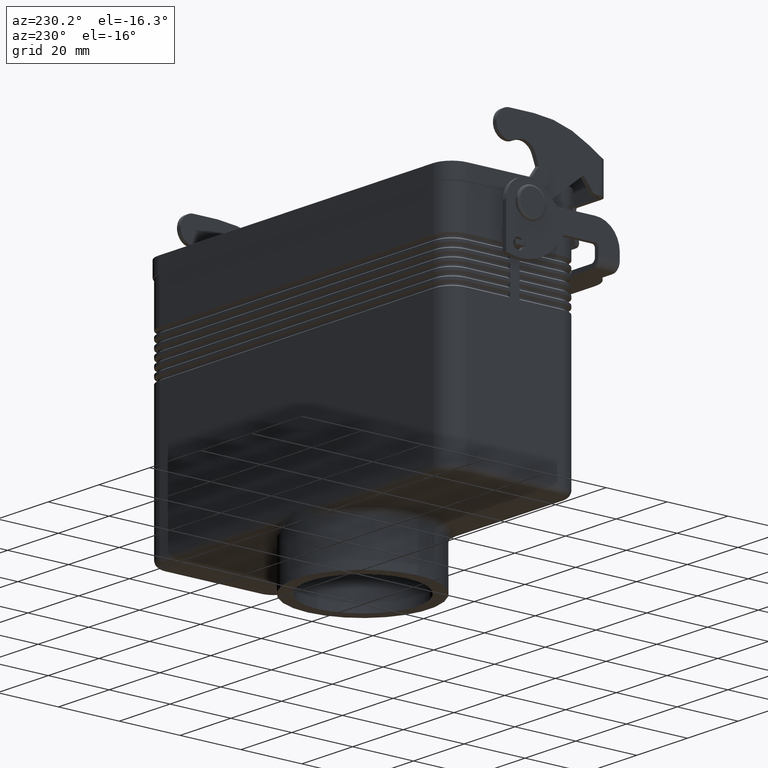
[diagram: clean part render]
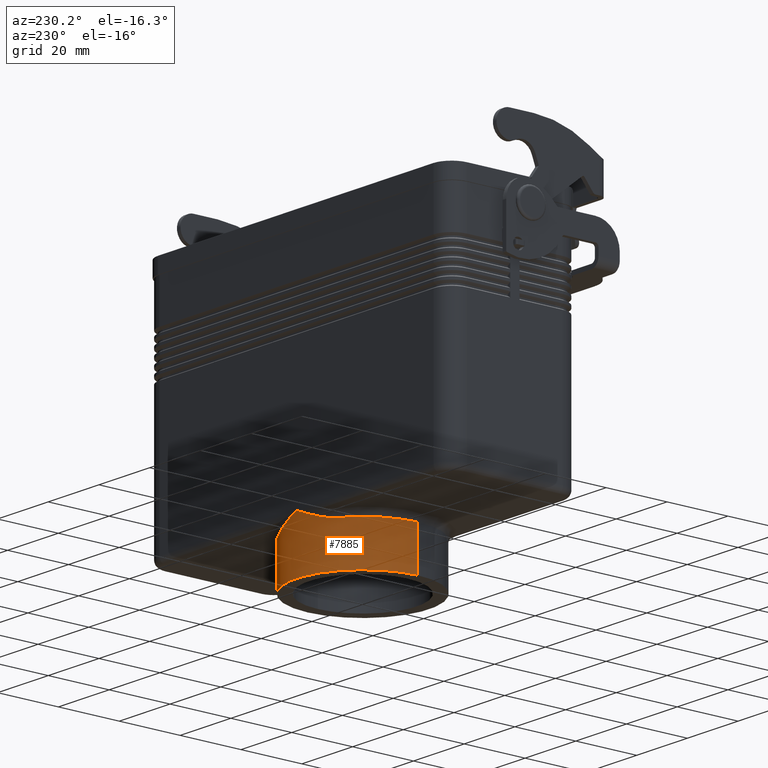
[diagram: same view with one face highlighted and labeled with its STEP entity id]
A machine part, auxiliary view. The second image highlights one B-rep face of the part: STEP entity #7885.
In plain terms, the highlighted cylindrical surface (partial cylindrical patch) has radius 21.74 mm, axis along (0, 0, 1).
Its self-contained STEP definition (entity closure, byte-faithful):
#7812=CARTESIAN_POINT('',(-9.674390E-015,0.0,-79.0));
#7813=DIRECTION('',(1.224606E-016,0.0,1.0));
#7814=DIRECTION('',(1.0,0.0,0.0));
#7815=AXIS2_PLACEMENT_3D('',#7812,#7813,#7814);
#7816=CYLINDRICAL_SURFACE('',#7815,21.739999999999995);
#7817=CARTESIAN_POINT('',(21.739999999999988,0.0,-88.0));
#7818=VERTEX_POINT('',#7817);
#7819=CARTESIAN_POINT('',(21.739999999999984,-2.662294E-015,-74.0));
#7820=VERTEX_POINT('',#7819);
#7821=CARTESIAN_POINT('',(21.739999999999988,0.0,-88.0));
#7822=DIRECTION('',(0.0,0.0,1.0));
#7823=VECTOR('',#7822,14.0);
#7824=LINE('',#7821,#7823);
#7825=EDGE_CURVE('',#7818,#7820,#7824,.T.);
#7826=ORIENTED_EDGE('',*,*,#7825,.F.);
#7827=CARTESIAN_POINT('',(-21.740000000000006,2.662294E-015,-88.0));
#7828=VERTEX_POINT('',#7827);
#7829=CARTESIAN_POINT('',(-1.077654E-014,0.0,-88.0));
#7830=DIRECTION('',(0.0,0.0,1.0));
#7831=DIRECTION('',(1.0,0.0,0.0));
#7832=AXIS2_PLACEMENT_3D('',#7829,#7830,#7831);
#7833=CIRCLE('',#7832,21.739999999999995);
#7834=EDGE_CURVE('',#7818,#7828,#7833,.T.);
#7835=ORIENTED_EDGE('',*,*,#7834,.T.);
#7836=CARTESIAN_POINT('',(-21.740000000000006,2.662294E-015,-74.0));
#7837=VERTEX_POINT('',#7836);
#7838=CARTESIAN_POINT('',(-21.740000000000006,2.662294E-015,-74.0));
#7839=DIRECTION('',(0.0,0.0,-1.0));
#7840=VECTOR('',#7839,14.0);
#7841=LINE('',#7838,#7840);
#7842=EDGE_CURVE('',#7837,#7828,#7841,.T.);
#7843=ORIENTED_EDGE('',*,*,#7842,.F.);
#7844=CARTESIAN_POINT('',(-12.063129131293685,18.086141533277175,-74.0));
#7845=VERTEX_POINT('',#7844);
#7846=CARTESIAN_POINT('',(-9.062087E-015,0.0,-74.0));
#7847=DIRECTION('',(0.0,0.0,1.0));
#7848=DIRECTION('',(-1.0,0.0,0.0));
#7849=AXIS2_PLACEMENT_3D('',#7846,#7847,#7848);
#7850=CIRCLE('',#7849,21.739999999999995);
#7851=EDGE_CURVE('',#7845,#7837,#7850,.T.);
#7852=ORIENTED_EDGE('',*,*,#7851,.F.);
#7853=CARTESIAN_POINT('',(12.063129131296254,18.086141533275448,-74.0));
#7854=VERTEX_POINT('',#7853);
#7855=CARTESIAN_POINT('',(12.063129131296254,18.086141533275452,-74.0));
#7856=CARTESIAN_POINT('',(10.656056385578815,19.024633593480129,-74.000000000000469));
#7857=CARTESIAN_POINT('',(9.153188601096025,19.787128526926303,-73.631761880097343));
#7858=CARTESIAN_POINT('',(6.429589899529221,20.806259128154863,-72.749806541800481));
#7859=CARTESIAN_POINT('',(5.216646350595601,21.140722587413023,-72.277004650950119));
#7860=CARTESIAN_POINT('',(3.250151995862887,21.509446302319304,-71.465279116077227));
#7861=CARTESIAN_POINT('',(2.493035810512679,21.610182263775709,-71.138512274412506));
#7862=CARTESIAN_POINT('',(1.147577112477563,21.717522079871351,-70.579686906235764));
#7863=CARTESIAN_POINT('',(0.560263862363635,21.741725597924322,-70.256204400056902));
#7864=CARTESIAN_POINT('',(-0.687011994691999,21.738089660548781,-70.311967829905456));
#7865=CARTESIAN_POINT('',(-1.265985315880427,21.710935975045711,-70.627652682445216));
#7866=CARTESIAN_POINT('',(-3.008587753117108,21.562361620704486,-71.355501935650636));
#7867=CARTESIAN_POINT('',(-4.160186488581317,21.370887574394850,-71.852915117635234));
#7868=CARTESIAN_POINT('',(-6.736752923236661,20.722511678501597,-72.860009782239175));
#7869=CARTESIAN_POINT('',(-8.166850920080831,20.206006239642200,-73.358864118294647));
#7870=CARTESIAN_POINT('',(-10.406203334222164,19.111710910525034,-73.872472184850849));
#7871=CARTESIAN_POINT('',(-11.252820728977806,18.626602574971653,-74.0));
#7872=CARTESIAN_POINT('',(-12.063129131293689,18.086141533277171,-74.0));
#7873=B_SPLINE_CURVE_WITH_KNOTS('',3,(#7855,#7856,#7857,#7858,#7859,#7860,#7861,#7862,#7863,#7864,#7865,#7866,#7867,#7868,#7869,#7870,#7871,#7872),.UNSPECIFIED.,.F.,.U.,(4,2,2,2,2,2,2,2,4),(0.0,0.554080154496323,0.983563892023257,1.251991227977591,1.456205626921241,1.660420025864891,2.068848823752191,2.579384821111316,2.898469819460769),.UNSPECIFIED.);
#7874=EDGE_CURVE('',#7854,#7845,#7873,.T.);
#7875=ORIENTED_EDGE('',*,*,#7874,.F.);
#7876=CARTESIAN_POINT('',(-9.062087E-015,0.0,-74.0));
#7877=DIRECTION('',(0.0,0.0,1.0));
#7878=DIRECTION('',(1.0,0.0,0.0));
#7879=AXIS2_PLACEMENT_3D('',#7876,#7877,#7878);
#7880=CIRCLE('',#7879,21.739999999999995);
#7881=EDGE_CURVE('',#7820,#7854,#7880,.T.);
#7882=ORIENTED_EDGE('',*,*,#7881,.F.);
#7883=EDGE_LOOP('',(#7826,#7835,#7843,#7852,#7875,#7882));
#7884=FACE_OUTER_BOUND('',#7883,.T.);
#7885=ADVANCED_FACE('',(#7884),#7816,.T.);